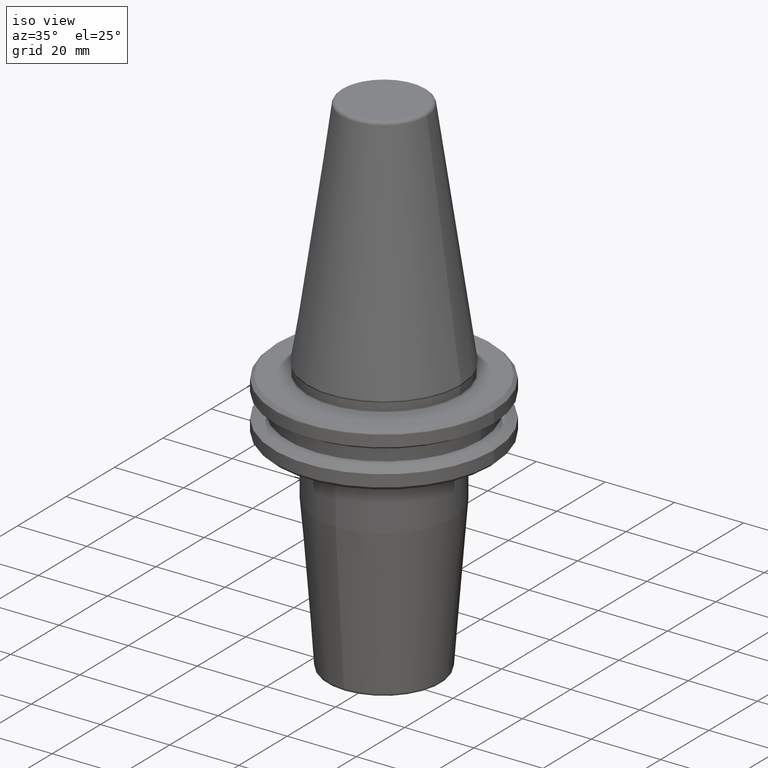
[diagram: clean part render]
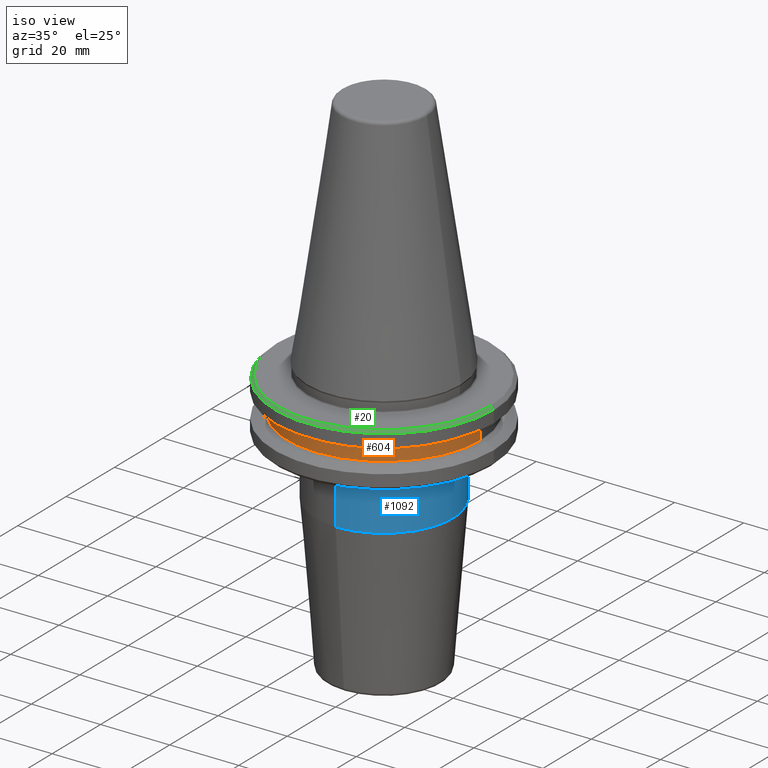
[diagram: same view with three faces highlighted in distinct colors, each labeled with its STEP entity id]
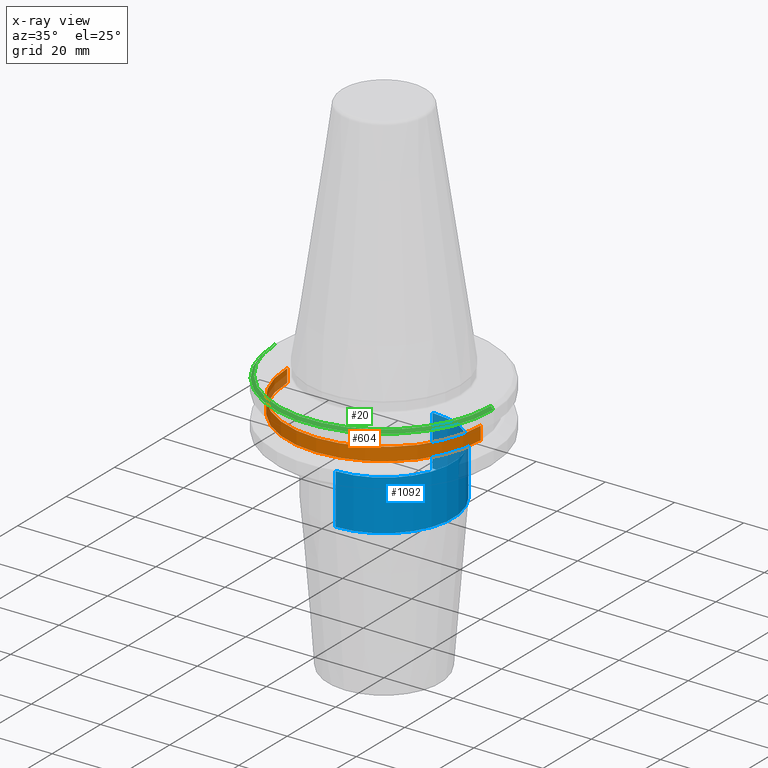
[diagram: x-ray of the same camera — body ghosted, the three highlighted faces saturated]
A machine part, iso view with three faces highlighted in distinct colors.
The next image is the same camera in x-ray (body ghosted, the three faces saturated) — at least one of them is partly hidden behind the body in this view.
Their STEP definitions:

[orange] entity #604 — the highlighted cylindrical surface (partial cylindrical patch) has radius 28 mm, axis along (-0, -0, 1).
#3 = CARTESIAN_POINT ( 'NONE',  ( 28.00000000000000000, 0.0000000000000000000, 113.5216080541959500 ) ) ;
#16 = EDGE_CURVE ( 'NONE', #638, #374, #466, .T. ) ;
#77 = DIRECTION ( 'NONE',  ( -0.0000000000000000000, -0.0000000000000000000, 1.000000000000000000 ) ) ;
#103 = AXIS2_PLACEMENT_3D ( 'NONE', #184, #660, #821 ) ;
#139 = CYLINDRICAL_SURFACE ( 'NONE', #103, 28.00000000000000000 ) ;
#143 = EDGE_LOOP ( 'NONE', ( #917, #1014, #244, #298 ) ) ;
#162 = VERTEX_POINT ( 'NONE', #994 ) ;
#184 = CARTESIAN_POINT ( 'NONE',  ( 0.0000000000000000000, 0.0000000000000000000, 113.5216080541959500 ) ) ;
#198 = CIRCLE ( 'NONE', #289, 28.00000000000000000 ) ;
#238 = CARTESIAN_POINT ( 'NONE',  ( -28.00000000000000000, 3.429011037612589300E-015, -9.199999999999999300 ) ) ;
#244 = ORIENTED_EDGE ( 'NONE', *, *, #712, .T. ) ;
#282 = DIRECTION ( 'NONE',  ( -0.0000000000000000000, -0.0000000000000000000, 1.000000000000000000 ) ) ;
#286 = VECTOR ( 'NONE', #1161, 1000.000000000000000 ) ;
#289 = AXIS2_PLACEMENT_3D ( 'NONE', #849, #282, #945 ) ;
#298 = ORIENTED_EDGE ( 'NONE', *, *, #734, .F. ) ;
#322 = CARTESIAN_POINT ( 'NONE',  ( -28.00000000000000000, 3.429011037612589300E-015, -13.00000000000001100 ) ) ;
#374 = VERTEX_POINT ( 'NONE', #238 ) ;
#466 = LINE ( 'NONE', #833, #1191 ) ;
#604 = ADVANCED_FACE ( 'NONE', ( #905 ), #139, .T. ) ;
#632 = DIRECTION ( 'NONE',  ( -0.0000000000000000000, -0.0000000000000000000, 1.000000000000000000 ) ) ;
#638 = VERTEX_POINT ( 'NONE', #322 ) ;
#660 = DIRECTION ( 'NONE',  ( -0.0000000000000000000, -0.0000000000000000000, 1.000000000000000000 ) ) ;
#712 = EDGE_CURVE ( 'NONE', #1060, #162, #781, .T. ) ;
#734 = EDGE_CURVE ( 'NONE', #374, #162, #1022, .T. ) ;
#781 = LINE ( 'NONE', #3, #286 ) ;
#783 = AXIS2_PLACEMENT_3D ( 'NONE', #842, #77, #1233 ) ;
#821 = DIRECTION ( 'NONE',  ( 1.000000000000000000, 0.0000000000000000000, 0.0000000000000000000 ) ) ;
#833 = CARTESIAN_POINT ( 'NONE',  ( -28.00000000000000000, 3.429011037612589300E-015, 113.5216080541959500 ) ) ;
#842 = CARTESIAN_POINT ( 'NONE',  ( 0.0000000000000000000, 0.0000000000000000000, -9.199999999999999300 ) ) ;
#849 = CARTESIAN_POINT ( 'NONE',  ( 0.0000000000000000000, 0.0000000000000000000, -13.00000000000001100 ) ) ;
#905 = FACE_OUTER_BOUND ( 'NONE', #143, .T. ) ;
#917 = ORIENTED_EDGE ( 'NONE', *, *, #16, .F. ) ;
#945 = DIRECTION ( 'NONE',  ( 1.000000000000000000, 0.0000000000000000000, 0.0000000000000000000 ) ) ;
#994 = CARTESIAN_POINT ( 'NONE',  ( 28.00000000000000000, 0.0000000000000000000, -9.199999999999999300 ) ) ;
#1014 = ORIENTED_EDGE ( 'NONE', *, *, #1198, .T. ) ;
#1021 = CARTESIAN_POINT ( 'NONE',  ( 28.00000000000000000, 0.0000000000000000000, -13.00000000000001100 ) ) ;
#1022 = CIRCLE ( 'NONE', #783, 28.00000000000000000 ) ;
#1060 = VERTEX_POINT ( 'NONE', #1021 ) ;
#1161 = DIRECTION ( 'NONE',  ( -0.0000000000000000000, -0.0000000000000000000, 1.000000000000000000 ) ) ;
#1191 = VECTOR ( 'NONE', #632, 1000.000000000000000 ) ;
#1198 = EDGE_CURVE ( 'NONE', #638, #1060, #198, .T. ) ;
#1233 = DIRECTION ( 'NONE',  ( 1.000000000000000000, 0.0000000000000000000, 0.0000000000000000000 ) ) ;

[blue] entity #1092 — the highlighted cylindrical surface (partial cylindrical patch) has radius 20 mm, axis along (-0, 0, -1).
#87 = DIRECTION ( 'NONE',  ( 0.0000000000000000000, 1.000000000000000000, 3.469446951953611700E-016 ) ) ;
#102 = DIRECTION ( 'NONE',  ( -0.0000000000000000000, 2.829168385244881300E-016, -1.000000000000000000 ) ) ;
#108 = EDGE_CURVE ( 'NONE', #748, #449, #642, .T. ) ;
#109 = VECTOR ( 'NONE', #102, 1000.000000000000000 ) ;
#123 = CARTESIAN_POINT ( 'NONE',  ( 0.0000000000000000000, 20.00000000000001400, -80.00000000000000000 ) ) ;
#141 = DIRECTION ( 'NONE',  ( 0.0000000000000000000, 1.000000000000000000, 0.0000000000000000000 ) ) ;
#258 = CARTESIAN_POINT ( 'NONE',  ( 0.0000000000000000000, -6.839794164568140200E-018, -80.00000000000000000 ) ) ;
#321 = CYLINDRICAL_SURFACE ( 'NONE', #946, 20.00000000000001400 ) ;
#344 = DIRECTION ( 'NONE',  ( -0.0000000000000000000, 2.829168385244881300E-016, -1.000000000000000000 ) ) ;
#356 = CARTESIAN_POINT ( 'NONE',  ( 0.0000000000000000000, -1.670378735265370500E-014, -20.98284271247461400 ) ) ;
#362 = VECTOR ( 'NONE', #639, 1000.000000000000000 ) ;
#385 = CIRCLE ( 'NONE', #654, 20.00000000000001400 ) ;
#449 = VERTEX_POINT ( 'NONE', #1139 ) ;
#461 = CARTESIAN_POINT ( 'NONE',  ( 2.449293598294708100E-015, 20.00000000000000400, -35.52828342338866500 ) ) ;
#464 = DIRECTION ( 'NONE',  ( 0.0000000000000000000, 1.000000000000000000, 3.469446951953611700E-016 ) ) ;
#476 = VERTEX_POINT ( 'NONE', #461 ) ;
#525 = CARTESIAN_POINT ( 'NONE',  ( 2.449293598294708500E-015, -20.00000000000001400, -80.00000000000000000 ) ) ;
#570 = CARTESIAN_POINT ( 'NONE',  ( 2.449293598294708500E-015, -20.00000000000003200, -20.98284271247462100 ) ) ;
#622 = EDGE_CURVE ( 'NONE', #1138, #476, #1132, .T. ) ;
#639 = DIRECTION ( 'NONE',  ( -0.0000000000000000000, 2.829168385244881300E-016, -1.000000000000000000 ) ) ;
#642 = LINE ( 'NONE', #525, #362 ) ;
#654 = AXIS2_PLACEMENT_3D ( 'NONE', #1243, #659, #87 ) ;
#659 = DIRECTION ( 'NONE',  ( -0.0000000000000000000, 2.829168385244881300E-016, -1.000000000000000000 ) ) ;
#737 = ORIENTED_EDGE ( 'NONE', *, *, #622, .F. ) ;
#748 = VERTEX_POINT ( 'NONE', #570 ) ;
#879 = ORIENTED_EDGE ( 'NONE', *, *, #1162, .T. ) ;
#946 = AXIS2_PLACEMENT_3D ( 'NONE', #258, #344, #141 ) ;
#998 = ORIENTED_EDGE ( 'NONE', *, *, #108, .T. ) ;
#1017 = AXIS2_PLACEMENT_3D ( 'NONE', #356, #1037, #464 ) ;
#1028 = EDGE_LOOP ( 'NONE', ( #879, #998, #1146, #737 ) ) ;
#1033 = CIRCLE ( 'NONE', #1017, 20.00000000000001400 ) ;
#1037 = DIRECTION ( 'NONE',  ( -0.0000000000000000000, 2.829168385244881300E-016, -1.000000000000000000 ) ) ;
#1092 = ADVANCED_FACE ( 'NONE', ( #1130 ), #321, .T. ) ;
#1122 = CARTESIAN_POINT ( 'NONE',  ( 0.0000000000000000000, 19.99999999999999600, -20.98284271247460700 ) ) ;
#1130 = FACE_OUTER_BOUND ( 'NONE', #1028, .T. ) ;
#1132 = LINE ( 'NONE', #123, #109 ) ;
#1138 = VERTEX_POINT ( 'NONE', #1122 ) ;
#1139 = CARTESIAN_POINT ( 'NONE',  ( 0.0000000000000000000, -20.00000000000002500, -35.52828342338867900 ) ) ;
#1146 = ORIENTED_EDGE ( 'NONE', *, *, #1260, .F. ) ;
#1162 = EDGE_CURVE ( 'NONE', #1138, #748, #1033, .T. ) ;
#1243 = CARTESIAN_POINT ( 'NONE',  ( 0.0000000000000000000, -1.258863725177651900E-014, -35.52828342338867200 ) ) ;
#1260 = EDGE_CURVE ( 'NONE', #476, #449, #385, .T. ) ;

[green] entity #20 — the highlighted conical surface has half-angle 45 deg.
#13 = VERTEX_POINT ( 'NONE', #928 ) ;
#15 = CARTESIAN_POINT ( 'NONE',  ( 30.86715728752538700, 3.780136537094586400E-015, -3.317157287525379400 ) ) ;
#20 = ADVANCED_FACE ( 'NONE', ( #932 ), #1154, .T. ) ;
#32 = DIRECTION ( 'NONE',  ( -0.7071067811865426900, 0.0000000000000000000, -0.7071067811865523500 ) ) ;
#34 = VERTEX_POINT ( 'NONE', #432 ) ;
#48 = CARTESIAN_POINT ( 'NONE',  ( -30.86715728752538700, 0.0000000000000000000, -3.317157287525379400 ) ) ;
#61 = DIRECTION ( 'NONE',  ( -1.000000000000000000, 0.0000000000000000000, 0.0000000000000000000 ) ) ;
#81 = AXIS2_PLACEMENT_3D ( 'NONE', #441, #1110, #543 ) ;
#119 = VECTOR ( 'NONE', #32, 1000.000000000000000 ) ;
#224 = CARTESIAN_POINT ( 'NONE',  ( 30.86715728752538400, 0.0000000000000000000, -3.317157287525379400 ) ) ;
#271 = VECTOR ( 'NONE', #405, 1000.000000000000000 ) ;
#283 = CARTESIAN_POINT ( 'NONE',  ( 0.0000000000000000000, 0.0000000000000000000, -3.317157287525379400 ) ) ;
#295 = LINE ( 'NONE', #15, #271 ) ;
#405 = DIRECTION ( 'NONE',  ( 0.7071067811865426900, 8.659560562354873700E-017, -0.7071067811865523500 ) ) ;
#432 = CARTESIAN_POINT ( 'NONE',  ( -30.86715728752538400, 3.780136537094586400E-015, -3.317157287525379400 ) ) ;
#441 = CARTESIAN_POINT ( 'NONE',  ( 0.0000000000000000000, 0.0000000000000000000, -4.082842712474624500 ) ) ;
#480 = CARTESIAN_POINT ( 'NONE',  ( 0.0000000000000000000, 0.0000000000000000000, -3.317157287525379400 ) ) ;
#505 = EDGE_LOOP ( 'NONE', ( #913, #1234, #663, #522 ) ) ;
#522 = ORIENTED_EDGE ( 'NONE', *, *, #1050, .T. ) ;
#543 = DIRECTION ( 'NONE',  ( 1.000000000000000000, 0.0000000000000000000, 0.0000000000000000000 ) ) ;
#557 = VERTEX_POINT ( 'NONE', #852 ) ;
#568 = DIRECTION ( 'NONE',  ( 1.000000000000000000, 0.0000000000000000000, 0.0000000000000000000 ) ) ;
#627 = LINE ( 'NONE', #48, #119 ) ;
#630 = AXIS2_PLACEMENT_3D ( 'NONE', #283, #1121, #61 ) ;
#663 = ORIENTED_EDGE ( 'NONE', *, *, #851, .T. ) ;
#704 = CIRCLE ( 'NONE', #824, 30.86715728752538700 ) ;
#824 = AXIS2_PLACEMENT_3D ( 'NONE', #480, #1137, #568 ) ;
#851 = EDGE_CURVE ( 'NONE', #34, #557, #627, .T. ) ;
#852 = CARTESIAN_POINT ( 'NONE',  ( -31.63284271247462300, 3.881079772434609700E-015, -4.082842712474624500 ) ) ;
#900 = CIRCLE ( 'NONE', #81, 31.63284271247462300 ) ;
#911 = EDGE_CURVE ( 'NONE', #978, #13, #295, .T. ) ;
#913 = ORIENTED_EDGE ( 'NONE', *, *, #911, .F. ) ;
#928 = CARTESIAN_POINT ( 'NONE',  ( 31.63284271247462300, 0.0000000000000000000, -4.082842712474624500 ) ) ;
#932 = FACE_OUTER_BOUND ( 'NONE', #505, .T. ) ;
#978 = VERTEX_POINT ( 'NONE', #224 ) ;
#1050 = EDGE_CURVE ( 'NONE', #557, #13, #900, .T. ) ;
#1110 = DIRECTION ( 'NONE',  ( -0.0000000000000000000, -0.0000000000000000000, 1.000000000000000000 ) ) ;
#1121 = DIRECTION ( 'NONE',  ( 0.0000000000000000000, 0.0000000000000000000, -1.000000000000000000 ) ) ;
#1137 = DIRECTION ( 'NONE',  ( -0.0000000000000000000, -0.0000000000000000000, 1.000000000000000000 ) ) ;
#1154 = CONICAL_SURFACE ( 'NONE', #630, 30.86715728752538700, 0.7853981633974415100 ) ;
#1221 = EDGE_CURVE ( 'NONE', #34, #978, #704, .T. ) ;
#1234 = ORIENTED_EDGE ( 'NONE', *, *, #1221, .F. ) ;